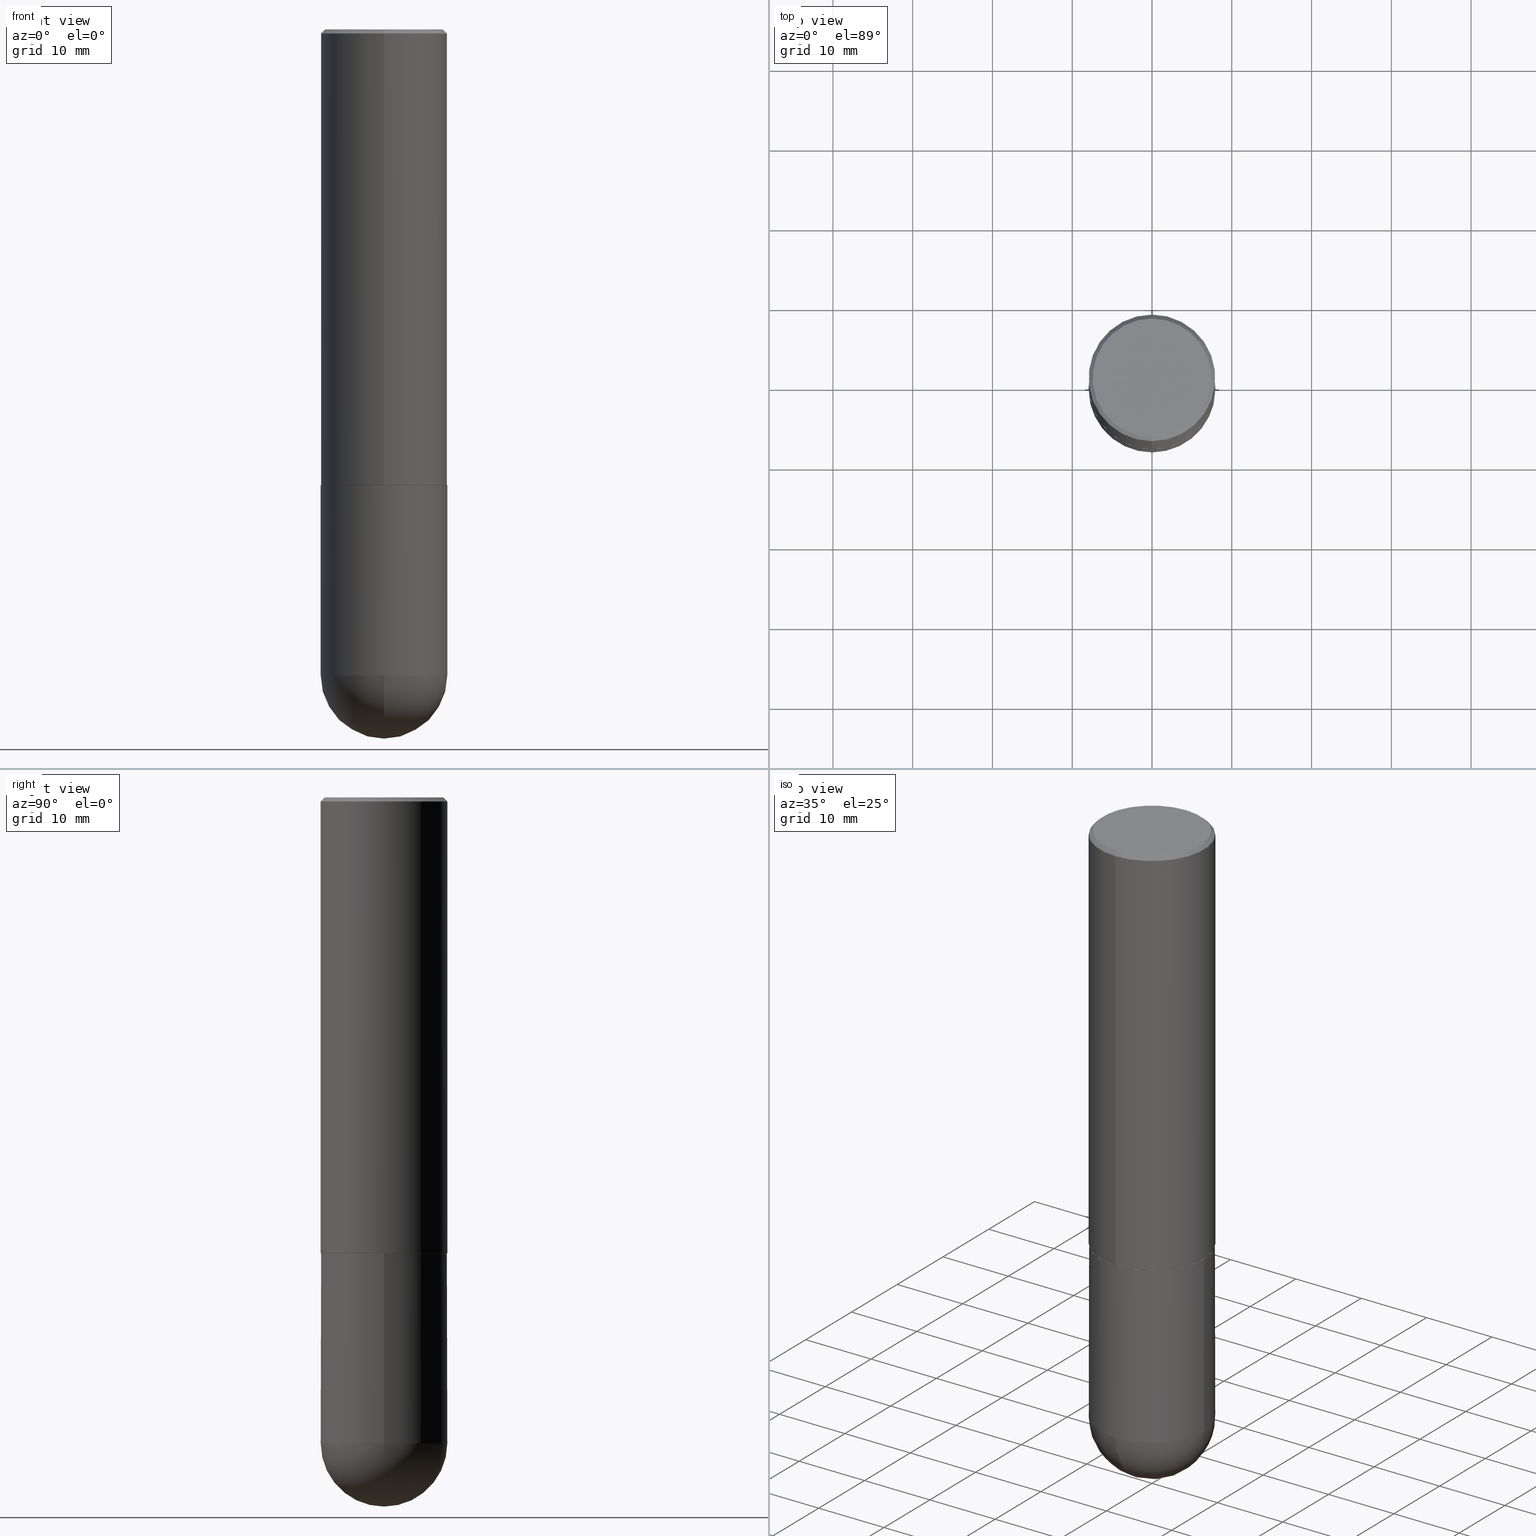
[diagram: canonical four-view strip — front | top / right | iso, engineering-drawing reading convention]
A machine part, canonical four-view strip (front | top / right | iso — engineering-drawing reading convention). The complete STEP part file that produces these views, byte-faithful:
ISO-10303-21;
HEADER;
FILE_DESCRIPTION (( 'STEP AP203' ),
    '1' );
FILE_NAME ('30938.STEP',
    '2024-02-21T16:46:26',
    ( '' ),
    ( '' ),
    'SwSTEP 2.0',
    'SolidWorks 2023',
    '' );
FILE_SCHEMA (( 'CONFIG_CONTROL_DESIGN' ));
ENDSEC;

DATA;
#1 = AXIS2_PLACEMENT_3D ( 'NONE', #22, #201, #266 ) ;
#2 = CARTESIAN_POINT ( 'NONE',  ( 5.500932345782121787E-29, -7.857798464881622238E-15, -2.249999999999999556 ) ) ;
#3 = DIRECTION ( 'NONE',  ( -2.444858820347609683E-29, 3.492354873280721784E-15, 1.000000000000000000 ) ) ;
#4 = ORIENTED_EDGE ( 'NONE', *, *, #177, .T. ) ;
#5 = DIRECTION ( 'NONE',  ( 1.000000000000000000, -6.982962677686265922E-15, 4.883557194083112340E-29 ) ) ;
#6 = EDGE_CURVE ( 'NONE', #59, #361, #402, .T. ) ;
#7 = ORIENTED_EDGE ( 'NONE', *, *, #13, .F. ) ;
#8 = DIRECTION ( 'NONE',  ( -2.444858820347609963E-29, 3.492354873280721389E-15, 1.000000000000000000 ) ) ;
#9 = ORIENTED_EDGE ( 'NONE', *, *, #152, .F. ) ;
#10 = AXIS2_PLACEMENT_3D ( 'NONE', #155, #35, #314 ) ;
#11 = DIRECTION ( 'NONE',  ( -2.444858820347609963E-29, 3.492354873280721389E-15, 1.000000000000000000 ) ) ;
#12 = ORIENTED_EDGE ( 'NONE', *, *, #293, .F. ) ;
#13 = EDGE_CURVE ( 'NONE', #192, #203, #39, .T. ) ;
#14 = DIRECTION ( 'NONE',  ( 0.000000000000000000, 0.000000000000000000, 1.000000000000000000 ) ) ;
#15 = APPROVAL_DATE_TIME ( #399, #34 ) ;
#16 = APPLICATION_PROTOCOL_DEFINITION ( 'international standard', 'config_control_design', 1994, #303 ) ;
#17 = DIRECTION ( 'NONE',  ( -6.982962677686265922E-15, -1.000000000000000000, 3.496765431890253764E-15 ) ) ;
#18 = LOCAL_TIME ( 11, 46, 26.00000000000000000, #169 ) ;
#19 = CARTESIAN_POINT ( 'NONE',  ( 7.794931819715121781E-29, -1.112909676756252622E-14, -3.187500000000000000 ) ) ;
#20 = ORIENTED_EDGE ( 'NONE', *, *, #152, .T. ) ;
#21 = DIRECTION ( 'NONE',  ( 1.000000000000000000, -6.982962677686269077E-15, 0.000000000000000000 ) ) ;
#22 = CARTESIAN_POINT ( 'NONE',  ( 5.500932345782121787E-29, -7.857798464881622238E-15, -2.249999999999999556 ) ) ;
#23 = AXIS2_PLACEMENT_3D ( 'NONE', #89, #91, #223 ) ;
#24 = APPROVAL ( #174, 'UNSPECIFIED' ) ;
#25 = CARTESIAN_POINT ( 'NONE',  ( 2.220446049250313475E-15, 0.3125000000000001665, -1.091360897900225903E-15 ) ) ;
#26 = DIRECTION ( 'NONE',  ( -2.444858820347609963E-29, 3.492354873280721389E-15, 1.000000000000000000 ) ) ;
#27 = CC_DESIGN_DATE_AND_TIME_ASSIGNMENT ( #111, #71, ( #95 ) ) ;
#28 = AXIS2_PLACEMENT_3D ( 'NONE', #2, #273, #88 ) ;
#29 = ORGANIZATION ( 'UNSPECIFIED', 'UNSPECIFIED', '' ) ;
#30 = FACE_OUTER_BOUND ( 'NONE', #31, .T. ) ;
#31 = EDGE_LOOP ( 'NONE', ( #45, #194 ) ) ;
#32 = DIRECTION ( 'NONE',  ( -2.445468806185136877E-29, 3.491481338843145188E-15, 1.000000000000000000 ) ) ;
#33 = AXIS2_PLACEMENT_3D ( 'NONE', #227, #298, #305 ) ;
#34 = APPROVAL ( #260, 'UNSPECIFIED' ) ;
#35 = DIRECTION ( 'NONE',  ( -2.445468806185136597E-29, 3.491481338843145583E-15, 1.000000000000000000 ) ) ;
#36 = FACE_OUTER_BOUND ( 'NONE', #125, .T. ) ;
#37 = ORIENTED_EDGE ( 'NONE', *, *, #237, .T. ) ;
#38 = ADVANCED_FACE ( 'NONE', ( #371 ), #145, .T. ) ;
#39 = CIRCLE ( 'NONE', #175, 0.3125000000000002776 ) ;
#40 = APPROVAL_ROLE ( '' ) ;
#41 = DIRECTION ( 'NONE',  ( -7.105427357601000281E-15, -1.000000000000000000, 0.000000000000000000 ) ) ;
#42 = ORIENTED_EDGE ( 'NONE', *, *, #13, .T. ) ;
#43 = PERSON_AND_ORGANIZATION ( #164, #29 ) ;
#44 = DIRECTION ( 'NONE',  ( -1.000000000000000000, 6.982962677686265922E-15, -4.883557194083112901E-29 ) ) ;
#45 = ORIENTED_EDGE ( 'NONE', *, *, #113, .T. ) ;
#46 = EDGE_CURVE ( 'NONE', #248, #361, #50, .T. ) ;
#47 = AXIS2_PLACEMENT_3D ( 'NONE', #337, #353, #386 ) ;
#48 = EDGE_LOOP ( 'NONE', ( #352, #4, #224, #7 ) ) ;
#49 = DATE_TIME_ROLE ( 'classification_date' ) ;
#50 = LINE ( 'NONE', #301, #86 ) ;
#51 = CARTESIAN_POINT ( 'NONE',  ( 5.502304813916556222E-29, -7.855833012397076871E-15, -2.249999999999999556 ) ) ;
#52 = EDGE_CURVE ( 'NONE', #197, #406, #198, .T. ) ;
#53 = AXIS2_PLACEMENT_3D ( 'NONE', #51, #121, #156 ) ;
#54 = CC_DESIGN_SECURITY_CLASSIFICATION ( #176, ( #304 ) ) ;
#55 = DIRECTION ( 'NONE',  ( -6.982962677686265133E-15, -1.000000000000000000, 3.496765431890256920E-15 ) ) ;
#56 = EDGE_CURVE ( 'NONE', #250, #326, #118, .T. ) ;
#57 = CARTESIAN_POINT ( 'NONE',  ( 2.182175836777013173E-15, 0.3124999999999921729, -2.250000000000000888 ) ) ;
#58 = CARTESIAN_POINT ( 'NONE',  ( -2.182175836776959136E-15, -0.3125000000000001665, 1.091360897900225903E-15 ) ) ;
#59 = VERTEX_POINT ( 'NONE', #281 ) ;
#60 = LINE ( 'NONE', #25, #149 ) ;
#61 = LINE ( 'NONE', #131, #70 ) ;
#62 = CARTESIAN_POINT ( 'NONE',  ( 7.463812041801236655E-29, -1.160327913570257494E-14, -3.187500000000000000 ) ) ;
#63 = ORIENTED_EDGE ( 'NONE', *, *, #46, .F. ) ;
#64 = CARTESIAN_POINT ( 'NONE',  ( 0.000000000000000000, 0.000000000000000000, 0.000000000000000000 ) ) ;
#65 = ORIENTED_EDGE ( 'NONE', *, *, #405, .T. ) ;
#66 = MANIFOLD_SOLID_BREP ( 'Body-Move/Copy2[1]', #339 ) ;
#67 = DIRECTION ( 'NONE',  ( 5.024295867789263036E-15, 0.7071067811867189912, 0.7071067811863760433 ) ) ;
#68 = ORIENTED_EDGE ( 'NONE', *, *, #293, .T. ) ;
#69 = ORIENTED_EDGE ( 'NONE', *, *, #237, .F. ) ;
#70 = VECTOR ( 'NONE', #32, 39.37007874015748143 ) ;
#71 = DATE_TIME_ROLE ( 'creation_date' ) ;
#72 = LOCAL_TIME ( 11, 46, 26.00000000000000000, #108 ) ;
#73 = ORIENTED_EDGE ( 'NONE', *, *, #75, .F. ) ;
#74 = DATE_AND_TIME ( #327, #72 ) ;
#75 = EDGE_CURVE ( 'NONE', #203, #361, #123, .T. ) ;
#76 = APPROVAL_DATE_TIME ( #264, #24 ) ;
#77 = CARTESIAN_POINT ( 'NONE',  ( 5.498487486961774276E-29, -7.854306110008341744E-15, -2.248999999999999666 ) ) ;
#78 = ORIENTED_EDGE ( 'NONE', *, *, #329, .F. ) ;
#79 = PERSON_AND_ORGANIZATION_ROLE ( 'design_owner' ) ;
#80 = CIRCLE ( 'NONE', #407, 0.2924999999999997602 ) ;
#81 = CARTESIAN_POINT ( 'NONE',  ( 4.889717640695238389E-31, -6.984709746561468318E-17, -0.02000000000000007327 ) ) ;
#82 = DIRECTION ( 'NONE',  ( -6.982962677686265133E-15, -1.000000000000000000, 3.492354873280720995E-15 ) ) ;
#83 = CIRCLE ( 'NONE', #146, 0.3125000000000000000 ) ;
#84 = CC_DESIGN_PERSON_AND_ORGANIZATION_ASSIGNMENT ( #291, #79, ( #251 ) ) ;
#85 = CARTESIAN_POINT ( 'NONE',  ( 8.241383017002520278E-29, -1.267523194785438148E-14, -3.500000000000000444 ) ) ;
#86 = VECTOR ( 'NONE', #332, 39.37007874015748854 ) ;
#87 = CIRCLE ( 'NONE', #349, 0.3114999999999999991 ) ;
#88 = DIRECTION ( 'NONE',  ( -6.982962677686265922E-15, -1.000000000000000000, 3.507991003100177457E-15 ) ) ;
#89 = CARTESIAN_POINT ( 'NONE',  ( -3.137019953351439440E-45, 4.481071393769925691E-31, 1.283108835260032635E-16 ) ) ;
#90 = ORIENTED_EDGE ( 'NONE', *, *, #75, .T. ) ;
#91 = DIRECTION ( 'NONE',  ( -2.444858820347609963E-29, 3.492354873280721389E-15, 1.000000000000000000 ) ) ;
#92 = ORIENTED_EDGE ( 'NONE', *, *, #221, .F. ) ;
#93 = CARTESIAN_POINT ( 'NONE',  ( 2.182175836776958741E-15, 0.3124999999999999445, -0.02000000000000116615 ) ) ;
#94 = CONICAL_SURFACE ( 'NONE', #28, 0.3114999999999999991, 0.7853981633976873100 ) ;
#95 = PRODUCT_DEFINITION ( 'UNKNOWN', '', #304, #241 ) ;
#96 = LINE ( 'NONE', #193, #404 ) ;
#97 = ORIENTED_EDGE ( 'NONE', *, *, #147, .F. ) ;
#98 = DIRECTION ( 'NONE',  ( 6.982962677686265922E-15, 1.000000000000000000, -3.496765431890253764E-15 ) ) ;
#99 = ORIENTED_EDGE ( 'NONE', *, *, #106, .F. ) ;
#100 = COORDINATED_UNIVERSAL_TIME_OFFSET ( 5, 0, .BEHIND. ) ;
#101 = CARTESIAN_POINT ( 'NONE',  ( 7.463812041801236655E-29, -1.160327913570257494E-14, -3.187500000000000000 ) ) ;
#102 = ORIENTED_EDGE ( 'NONE', *, *, #46, .T. ) ;
#103 = CIRCLE ( 'NONE', #238, 0.3125000000000000000 ) ;
#104 = DATE_AND_TIME ( #364, #18 ) ;
#105 = DIRECTION ( 'NONE',  ( 6.982962677686265922E-15, 1.000000000000000000, -3.492354873280721784E-15 ) ) ;
#106 = EDGE_CURVE ( 'NONE', #139, #220, #87, .T. ) ;
#107 = CARTESIAN_POINT ( 'NONE',  ( -0.3125000000000000000, -7.272018840729490833E-15, -3.187500000000000000 ) ) ;
#108 = COORDINATED_UNIVERSAL_TIME_OFFSET ( 5, 0, .BEHIND. ) ;
#109 = DIRECTION ( 'NONE',  ( -2.444858820347609963E-29, 3.492354873280721389E-15, 1.000000000000000000 ) ) ;
#110 = ORIENTED_EDGE ( 'NONE', *, *, #6, .F. ) ;
#111 = DATE_AND_TIME ( #392, #151 ) ;
#112 = CARTESIAN_POINT ( 'NONE',  ( 0.000000000000000000, 0.000000000000000000, 0.000000000000000000 ) ) ;
#113 = EDGE_CURVE ( 'NONE', #406, #197, #103, .T. ) ;
#114 = PERSON_AND_ORGANIZATION ( #164, #29 ) ;
#115 = DIRECTION ( 'NONE',  ( -2.445468806185136877E-29, 3.491481338843145188E-15, 1.000000000000000000 ) ) ;
#116 = AXIS2_PLACEMENT_3D ( 'NONE', #112, #365, #82 ) ;
#117 = DIRECTION ( 'NONE',  ( -2.444858820347609963E-29, 3.492354873280721389E-15, 1.000000000000000000 ) ) ;
#118 = CIRCLE ( 'NONE', #370, 0.3125000000000000000 ) ;
#119 = EDGE_CURVE ( 'NONE', #267, #326, #394, .T. ) ;
#120 = DIRECTION ( 'NONE',  ( 1.000000000000000000, -6.982962677686266711E-15, 4.876176775795936353E-29 ) ) ;
#121 = DIRECTION ( 'NONE',  ( -2.445468806185136597E-29, 3.491481338843145583E-15, 1.000000000000000000 ) ) ;
#122 = CARTESIAN_POINT ( 'NONE',  ( 0.3125000000000000000, -1.167464072675676384E-14, -3.187500000000000000 ) ) ;
#123 = LINE ( 'NONE', #58, #215 ) ;
#124 = CYLINDRICAL_SURFACE ( 'NONE', #126, 0.3125000000000000000 ) ;
#125 = EDGE_LOOP ( 'NONE', ( #216, #262, #383, #92 ) ) ;
#126 = AXIS2_PLACEMENT_3D ( 'NONE', #380, #246, #120 ) ;
#127 = PLANE ( 'NONE',  #142 ) ;
#128 =( NAMED_UNIT ( * ) PLANE_ANGLE_UNIT ( ) SI_UNIT ( $, .RADIAN. ) );
#129 = CARTESIAN_POINT ( 'NONE',  ( 5.502304813916556222E-29, -7.855833012397076871E-15, -2.249999999999999556 ) ) ;
#130 = VERTEX_POINT ( 'NONE', #191 ) ;
#131 = CARTESIAN_POINT ( 'NONE',  ( -0.3125000000000000000, 2.220446049250313081E-15, -1.537167215704658232E-29 ) ) ;
#132 = DIRECTION ( 'NONE',  ( 6.982962677686265922E-15, 1.000000000000000000, 0.000000000000000000 ) ) ;
#133 = ADVANCED_FACE ( 'NONE', ( #315 ), #195, .T. ) ;
#134 =( LENGTH_UNIT ( ) NAMED_UNIT ( * ) SI_UNIT ( $, .METRE. ) );
#135 = ORIENTED_EDGE ( 'NONE', *, *, #56, .F. ) ;
#136 = CONICAL_SURFACE ( 'NONE', #312, 0.3125000000000000000, 0.7853981633974490562 ) ;
#137 = DIRECTION ( 'NONE',  ( -6.982962677686265133E-15, -1.000000000000000000, 3.496765431890256920E-15 ) ) ;
#138 = EDGE_LOOP ( 'NONE', ( #348, #342, #97, #334 ) ) ;
#139 = VERTEX_POINT ( 'NONE', #411 ) ;
#140 = PERSON_AND_ORGANIZATION_ROLE ( 'creator' ) ;
#141 = DIRECTION ( 'NONE',  ( -6.982962677686266711E-15, -1.000000000000000000, 3.492354873280721784E-15 ) ) ;
#142 = AXIS2_PLACEMENT_3D ( 'NONE', #57, #372, #276 ) ;
#143 = CALENDAR_DATE ( 2024, 21, 2 ) ;
#144 = ORIENTED_EDGE ( 'NONE', *, *, #182, .F. ) ;
#145 = CONICAL_SURFACE ( 'NONE', #375, 0.3114999999999999991, 0.7853981633976873100 ) ;
#146 = AXIS2_PLACEMENT_3D ( 'NONE', #360, #165, #137 ) ;
#147 = EDGE_CURVE ( 'NONE', #203, #192, #269, .T. ) ;
#148 = CARTESIAN_POINT ( 'NONE',  ( 0.000000000000000000, 0.000000000000000000, 0.000000000000000000 ) ) ;
#149 = VECTOR ( 'NONE', #183, 39.37007874015748143 ) ;
#150 = DIRECTION ( 'NONE',  ( -6.982962677686265922E-15, -1.000000000000000000, 3.507991003100177457E-15 ) ) ;
#151 = LOCAL_TIME ( 11, 46, 26.00000000000000000, #100 ) ;
#152 = EDGE_CURVE ( 'NONE', #248, #130, #80, .T. ) ;
#153 = ORIENTED_EDGE ( 'NONE', *, *, #384, .T. ) ;
#154 =( CONVERSION_BASED_UNIT ( 'INCH', #226 ) LENGTH_UNIT ( ) NAMED_UNIT ( #271 ) );
#155 = CARTESIAN_POINT ( 'NONE',  ( 7.794931819715121781E-29, -1.112909676756252622E-14, -3.187500000000000000 ) ) ;
#156 = DIRECTION ( 'NONE',  ( 1.000000000000000000, -6.982962677686269077E-15, 0.000000000000000000 ) ) ;
#157 = CARTESIAN_POINT ( 'NONE',  ( 0.3125000000000000000, -1.003800884917403522E-14, -2.249999999999999556 ) ) ;
#158 = DIRECTION ( 'NONE',  ( 2.444858820347609403E-29, -3.492354873280721784E-15, -1.000000000000000000 ) ) ;
#159 = CC_DESIGN_DATE_AND_TIME_ASSIGNMENT ( #74, #49, ( #176 ) ) ;
#160 = DIRECTION ( 'NONE',  ( -2.444858820347609963E-29, 3.492354873280721389E-15, 1.000000000000000000 ) ) ;
#161 = ORIENTED_EDGE ( 'NONE', *, *, #113, .F. ) ;
#162 = AXIS2_PLACEMENT_3D ( 'NONE', #396, #109, #206 ) ;
#163 = DIRECTION ( 'NONE',  ( 1.000000000000000000, 0.000000000000000000, 0.000000000000000000 ) ) ;
#164 = PERSON ( 'UNSPECIFIED', 'UNSPECIFIED', 'UNSPECIFIED', ('UNSPECIFIED'), ('UNSPECIFIED'), ('UNSPECIFIED') ) ;
#165 = DIRECTION ( 'NONE',  ( -2.444858820347609963E-29, 3.492354873280721389E-15, 1.000000000000000000 ) ) ;
#166 = APPROVAL ( #205, 'UNSPECIFIED' ) ;
#167 = APPROVAL_DATE_TIME ( #104, #166 ) ;
#168 = DIRECTION ( 'NONE',  ( 6.982962677686265922E-15, 1.000000000000000000, -3.496765431890253764E-15 ) ) ;
#169 = COORDINATED_UNIVERSAL_TIME_OFFSET ( 5, 0, .BEHIND. ) ;
#170 = CARTESIAN_POINT ( 'NONE',  ( 7.463812041801236655E-29, -1.160327913570257494E-14, -3.187500000000000000 ) ) ;
#171 = AXIS2_PLACEMENT_3D ( 'NONE', #170, #44, #168 ) ;
#172 = APPROVAL_PERSON_ORGANIZATION ( #43, #34, #289 ) ;
#173 = APPROVAL_ROLE ( '' ) ;
#174 = APPROVAL_STATUS ( 'not_yet_approved' ) ;
#175 = AXIS2_PLACEMENT_3D ( 'NONE', #338, #117, #179 ) ;
#176 = SECURITY_CLASSIFICATION ( '', '', #230 ) ;
#177 = EDGE_CURVE ( 'NONE', #220, #139, #318, .T. ) ;
#178 = CARTESIAN_POINT ( 'NONE',  ( 2.216893335571567797E-15, 0.3114999999999921720, -2.250000000000000444 ) ) ;
#179 = DIRECTION ( 'NONE',  ( -6.982962677686265922E-15, -1.000000000000000000, 3.496765431890253764E-15 ) ) ;
#180 = CIRCLE ( 'NONE', #10, 0.3125000000000000000 ) ;
#181 = CARTESIAN_POINT ( 'NONE',  ( 7.794931819715121781E-29, -1.112909676756252622E-14, -3.187500000000000000 ) ) ;
#182 = EDGE_CURVE ( 'NONE', #267, #362, #333, .T. ) ;
#183 = DIRECTION ( 'NONE',  ( -2.444858820347609683E-29, 3.492354873280721784E-15, 1.000000000000000000 ) ) ;
#184 = CARTESIAN_POINT ( 'NONE',  ( 2.213340621892766504E-15, 0.3114999999999921720, -2.250000000000000444 ) ) ;
#185 = EDGE_LOOP ( 'NONE', ( #9, #102, #397, #78 ) ) ;
#186 = DIRECTION ( 'NONE',  ( 2.444858820347609963E-29, -3.492354873280721389E-15, -1.000000000000000000 ) ) ;
#187 = DIRECTION ( 'NONE',  ( -2.445468806185136597E-29, 3.491481338843145583E-15, 1.000000000000000000 ) ) ;
#188 = ORIENTED_EDGE ( 'NONE', *, *, #6, .T. ) ;
#189 = APPROVAL_PERSON_ORGANIZATION ( #233, #166, #173 ) ;
#190 = ADVANCED_FACE ( 'NONE', ( #261 ), #287, .F. ) ;
#191 = CARTESIAN_POINT ( 'NONE',  ( 2.112346210000094654E-15, 0.2924999999999997602, -8.932029169086070190E-16 ) ) ;
#192 = VERTEX_POINT ( 'NONE', #231 ) ;
#193 = CARTESIAN_POINT ( 'NONE',  ( -2.175192874099216718E-15, -0.3115000000000078817, -2.249999999999998224 ) ) ;
#194 = ORIENTED_EDGE ( 'NONE', *, *, #52, .T. ) ;
#195 = SPHERICAL_SURFACE ( 'NONE', #171, 0.3125000000000002776 ) ;
#196 = EDGE_CURVE ( 'NONE', #361, #59, #83, .T. ) ;
#197 = VERTEX_POINT ( 'NONE', #257 ) ;
#198 = CIRCLE ( 'NONE', #53, 0.3125000000000000000 ) ;
#199 = CIRCLE ( 'NONE', #23, 0.2924999999999997602 ) ;
#200 = MECHANICAL_CONTEXT ( 'NONE', #303, 'mechanical' ) ;
#201 = DIRECTION ( 'NONE',  ( -2.444858820347609403E-29, 3.492354873280721784E-15, 1.000000000000000000 ) ) ;
#202 = COORDINATED_UNIVERSAL_TIME_OFFSET ( 5, 0, .BEHIND. ) ;
#203 = VERTEX_POINT ( 'NONE', #388 ) ;
#204 = EDGE_CURVE ( 'NONE', #362, #250, #308, .T. ) ;
#205 = APPROVAL_STATUS ( 'not_yet_approved' ) ;
#206 = DIRECTION ( 'NONE',  ( -6.982962677686265922E-15, -1.000000000000000000, 3.507991003100177457E-15 ) ) ;
#207 = FACE_OUTER_BOUND ( 'NONE', #379, .T. ) ;
#208 = MANIFOLD_SOLID_BREP ( 'Body-Move/Copy2[2]', #253 ) ;
#209 = AXIS2_PLACEMENT_3D ( 'NONE', #19, #234, #21 ) ;
#210 = PERSON_AND_ORGANIZATION_ROLE ( 'design_supplier' ) ;
#211 = LINE ( 'NONE', #328, #263 ) ;
#212 = AXIS2_PLACEMENT_3D ( 'NONE', #101, #292, #41 ) ;
#213 =( GEOMETRIC_REPRESENTATION_CONTEXT ( 3 ) GLOBAL_UNCERTAINTY_ASSIGNED_CONTEXT ( ( #324 ) ) GLOBAL_UNIT_ASSIGNED_CONTEXT ( ( #154, #128, #218 ) ) REPRESENTATION_CONTEXT ( 'NONE', 'WORKASPACE' ) );
#214 = AXIS2_PLACEMENT_3D ( 'NONE', #81, #26, #55 ) ;
#215 = VECTOR ( 'NONE', #3, 39.37007874015748143 ) ;
#216 = ORIENTED_EDGE ( 'NONE', *, *, #119, .F. ) ;
#217 = CYLINDRICAL_SURFACE ( 'NONE', #254, 0.3125000000000000000 ) ;
#218 =( NAMED_UNIT ( * ) SI_UNIT ( $, .STERADIAN. ) SOLID_ANGLE_UNIT ( ) );
#219 = DIRECTION ( 'NONE',  ( -2.445468806185136597E-29, 3.491481338843145583E-15, 1.000000000000000000 ) ) ;
#220 = VERTEX_POINT ( 'NONE', #178 ) ;
#221 = EDGE_CURVE ( 'NONE', #326, #319, #277, .T. ) ;
#222 = EDGE_LOOP ( 'NONE', ( #153, #20 ) ) ;
#223 = DIRECTION ( 'NONE',  ( -6.982962677686266711E-15, -1.000000000000000000, 3.492354873280721784E-15 ) ) ;
#224 = ORIENTED_EDGE ( 'NONE', *, *, #373, .T. ) ;
#225 = ADVANCED_FACE ( 'NONE', ( #270 ), #400, .T. ) ;
#226 = LENGTH_MEASURE_WITH_UNIT ( LENGTH_MEASURE( 0.02539999999999999897 ), #134 );
#227 = CARTESIAN_POINT ( 'NONE',  ( 7.794931819715121781E-29, -1.112909676756252622E-14, -3.187500000000000000 ) ) ;
#228 = ORIENTED_EDGE ( 'NONE', *, *, #196, .F. ) ;
#229 = ORIENTED_EDGE ( 'NONE', *, *, #56, .T. ) ;
#230 = SECURITY_CLASSIFICATION_LEVEL ( 'unclassified' ) ;
#231 = CARTESIAN_POINT ( 'NONE',  ( 2.220446049250341874E-15, 0.3124999999999924505, -2.249000000000000998 ) ) ;
#232 = CC_DESIGN_PERSON_AND_ORGANIZATION_ASSIGNMENT ( #297, #359, ( #176 ) ) ;
#233 = PERSON_AND_ORGANIZATION ( #164, #29 ) ;
#234 = DIRECTION ( 'NONE',  ( -2.445468806185136597E-29, 3.491481338843145583E-15, 1.000000000000000000 ) ) ;
#235 = LOCAL_TIME ( 11, 46, 26.00000000000000000, #202 ) ;
#236 = CARTESIAN_POINT ( 'NONE',  ( 5.500932345782121787E-29, -7.857798464881622238E-15, -2.249999999999999556 ) ) ;
#237 = EDGE_CURVE ( 'NONE', #250, #406, #211, .T. ) ;
#238 = AXIS2_PLACEMENT_3D ( 'NONE', #129, #219, #347 ) ;
#239 = FACE_OUTER_BOUND ( 'NONE', #391, .T. ) ;
#240 = CARTESIAN_POINT ( 'NONE',  ( 5.500932345782121787E-29, -7.857798464881622238E-15, -2.249999999999999556 ) ) ;
#241 = DESIGN_CONTEXT ( 'detailed design', #306, 'design' ) ;
#242 = DIRECTION ( 'NONE',  ( 4.937700262164550409E-15, 0.7071067811865455743, -0.7071067811865493491 ) ) ;
#243 = AXIS2_PLACEMENT_3D ( 'NONE', #252, #280, #98 ) ;
#244 = DIRECTION ( 'NONE',  ( 1.000000000000000000, -6.982962677686269077E-15, 0.000000000000000000 ) ) ;
#245 = AXIS2_PLACEMENT_3D ( 'NONE', #322, #14, #163 ) ;
#246 = DIRECTION ( 'NONE',  ( -2.445468806185136597E-29, 3.491481338843145583E-15, 1.000000000000000000 ) ) ;
#247 = ADVANCED_FACE ( 'NONE', ( #30 ), #127, .F. ) ;
#248 = VERTEX_POINT ( 'NONE', #249 ) ;
#249 = CARTESIAN_POINT ( 'NONE',  ( -2.075300644325887099E-15, -0.2924999999999997602, 1.149824683960613595E-15 ) ) ;
#250 = VERTEX_POINT ( 'NONE', #122 ) ;
#251 = PRODUCT ( '30938', '30938', '', ( #200 ) ) ;
#252 = CARTESIAN_POINT ( 'NONE',  ( 7.463812041801236655E-29, -1.160327913570257494E-14, -3.187500000000000000 ) ) ;
#253 = CLOSED_SHELL ( 'NONE', ( #38, #369, #321, #302, #225, #265, #309, #190 ) ) ;
#254 = AXIS2_PLACEMENT_3D ( 'NONE', #148, #343, #346 ) ;
#255 = ADVANCED_FACE ( 'NONE', ( #382 ), #124, .T. ) ;
#256 = DIRECTION ( 'NONE',  ( -6.982962677686265133E-15, -1.000000000000000000, 3.492354873280720995E-15 ) ) ;
#257 = CARTESIAN_POINT ( 'NONE',  ( -0.3125000000000000000, -7.272018840729487678E-15, -2.249999999999999556 ) ) ;
#258 = ORIENTED_EDGE ( 'NONE', *, *, #329, .T. ) ;
#259 = PERSON_AND_ORGANIZATION ( #164, #29 ) ;
#260 = APPROVAL_STATUS ( 'not_yet_approved' ) ;
#261 = FACE_OUTER_BOUND ( 'NONE', #222, .T. ) ;
#262 = ORIENTED_EDGE ( 'NONE', *, *, #182, .T. ) ;
#263 = VECTOR ( 'NONE', #115, 39.37007874015748143 ) ;
#264 = DATE_AND_TIME ( #143, #235 ) ;
#265 = ADVANCED_FACE ( 'NONE', ( #377 ), #94, .T. ) ;
#266 = DIRECTION ( 'NONE',  ( -6.982962677686265922E-15, -1.000000000000000000, 3.492354873280721784E-15 ) ) ;
#267 = VERTEX_POINT ( 'NONE', #85 ) ;
#268 = DIRECTION ( 'NONE',  ( -2.444858820347609963E-29, 3.492354873280721389E-15, 1.000000000000000000 ) ) ;
#269 = CIRCLE ( 'NONE', #340, 0.3125000000000002776 ) ;
#270 = FACE_OUTER_BOUND ( 'NONE', #316, .T. ) ;
#271 = DIMENSIONAL_EXPONENTS ( 1.000000000000000000, 0.000000000000000000, 0.000000000000000000, 0.000000000000000000, 0.000000000000000000, 0.000000000000000000, 0.000000000000000000 ) ;
#272 = AXIS2_PLACEMENT_3D ( 'NONE', #393, #158, #105 ) ;
#273 = DIRECTION ( 'NONE',  ( -2.444858820347609963E-29, 3.492354873280721389E-15, 1.000000000000000000 ) ) ;
#274 = CARTESIAN_POINT ( 'NONE',  ( -2.220446049250237350E-15, -0.3125000000000114908, -3.187499999999998668 ) ) ;
#275 = ORIENTED_EDGE ( 'NONE', *, *, #147, .T. ) ;
#276 = DIRECTION ( 'NONE',  ( -1.000000000000000000, 6.982962677686265922E-15, -4.876176775795935793E-29 ) ) ;
#277 = CIRCLE ( 'NONE', #209, 0.3125000000000000000 ) ;
#278 = CC_DESIGN_APPROVAL ( #34, ( #95 ) ) ;
#279 = ADVANCED_BREP_SHAPE_REPRESENTATION ( '30938', ( #66, #208, #245 ), #213 ) ;
#280 = DIRECTION ( 'NONE',  ( -1.000000000000000000, 6.982962677686265922E-15, -4.883557194083112901E-29 ) ) ;
#281 = CARTESIAN_POINT ( 'NONE',  ( 2.182175836776958741E-15, 0.3124999999999999445, -0.02000000000000116615 ) ) ;
#282 = ORIENTED_EDGE ( 'NONE', *, *, #177, .F. ) ;
#283 = CARTESIAN_POINT ( 'NONE',  ( -3.137019953351439440E-45, 4.481071393769925691E-31, 1.283108835260032635E-16 ) ) ;
#284 = ADVANCED_FACE ( 'NONE', ( #409 ), #217, .T. ) ;
#285 = EDGE_LOOP ( 'NONE', ( #275, #68, #228, #73 ) ) ;
#286 = CARTESIAN_POINT ( 'NONE',  ( 2.182175836777035261E-15, 0.3124999999999887867, -3.187500000000000888 ) ) ;
#287 = PLANE ( 'NONE',  #272 ) ;
#288 = AXIS2_PLACEMENT_3D ( 'NONE', #62, #5, #132 ) ;
#289 = APPROVAL_ROLE ( '' ) ;
#290 = EDGE_LOOP ( 'NONE', ( #412, #65, #161, #69, #229 ) ) ;
#291 = PERSON_AND_ORGANIZATION ( #164, #29 ) ;
#292 = DIRECTION ( 'NONE',  ( -1.000000000000000000, 7.105427357601001070E-15, -4.926315508542082329E-29 ) ) ;
#293 = EDGE_CURVE ( 'NONE', #192, #59, #60, .T. ) ;
#294 = PERSON_AND_ORGANIZATION ( #164, #29 ) ;
#295 = EDGE_LOOP ( 'NONE', ( #144, #354, #135, #323 ) ) ;
#296 = CONICAL_SURFACE ( 'NONE', #47, 0.3125000000000000000, 0.7853981633974490562 ) ;
#297 = PERSON_AND_ORGANIZATION ( #164, #29 ) ;
#298 = DIRECTION ( 'NONE',  ( -2.445468806185136597E-29, 3.491481338843145583E-15, 1.000000000000000000 ) ) ;
#299 = ORIENTED_EDGE ( 'NONE', *, *, #405, .F. ) ;
#300 = SHAPE_DEFINITION_REPRESENTATION ( #313, #279 ) ;
#301 = CARTESIAN_POINT ( 'NONE',  ( -2.143905624303602824E-15, -0.3125000000000000555, -0.01999999999999898040 ) ) ;
#302 = ADVANCED_FACE ( 'NONE', ( #239 ), #136, .T. ) ;
#303 = APPLICATION_CONTEXT ( 'configuration controlled 3d designs of mechanical parts and assemblies' ) ;
#304 = PRODUCT_DEFINITION_FORMATION_WITH_SPECIFIED_SOURCE ( 'ANY', '', #251, .NOT_KNOWN. ) ;
#305 = DIRECTION ( 'NONE',  ( 1.000000000000000000, -6.982962677686269077E-15, 0.000000000000000000 ) ) ;
#306 = APPLICATION_CONTEXT ( 'configuration controlled 3d designs of mechanical parts and assemblies' ) ;
#307 = CC_DESIGN_PERSON_AND_ORGANIZATION_ASSIGNMENT ( #114, #140, ( #304 ) ) ;
#308 = CIRCLE ( 'NONE', #33, 0.3125000000000000000 ) ;
#309 = ADVANCED_FACE ( 'NONE', ( #207 ), #331, .F. ) ;
#310 = CARTESIAN_POINT ( 'NONE',  ( 4.889717640695238389E-31, -6.984709746561468318E-17, -0.02000000000000007327 ) ) ;
#311 = SPHERICAL_SURFACE ( 'NONE', #243, 0.3125000000000002776 ) ;
#312 = AXIS2_PLACEMENT_3D ( 'NONE', #310, #186, #336 ) ;
#313 = PRODUCT_DEFINITION_SHAPE ( 'NONE', 'NONE',  #95 ) ;
#314 = DIRECTION ( 'NONE',  ( 1.000000000000000000, -6.982962677686269077E-15, 0.000000000000000000 ) ) ;
#315 = FACE_OUTER_BOUND ( 'NONE', #295, .T. ) ;
#316 = EDGE_LOOP ( 'NONE', ( #12, #42, #90, #110 ) ) ;
#317 = LINE ( 'NONE', #93, #385 ) ;
#318 = CIRCLE ( 'NONE', #162, 0.3114999999999999991 ) ;
#319 = VERTEX_POINT ( 'NONE', #107 ) ;
#320 = CALENDAR_DATE ( 2024, 21, 2 ) ;
#321 = ADVANCED_FACE ( 'NONE', ( #368 ), #296, .T. ) ;
#322 = CARTESIAN_POINT ( 'NONE',  ( 0.000000000000000000, 0.000000000000000000, 0.000000000000000000 ) ) ;
#323 = ORIENTED_EDGE ( 'NONE', *, *, #204, .F. ) ;
#324 = UNCERTAINTY_MEASURE_WITH_UNIT (LENGTH_MEASURE( 1.000000000000000082E-05 ), #154, 'distance_accuracy_value', 'NONE');
#325 = APPLICATION_PROTOCOL_DEFINITION ( 'international standard', 'config_control_design', 1994, #306 ) ;
#326 = VERTEX_POINT ( 'NONE', #286 ) ;
#327 = CALENDAR_DATE ( 2024, 21, 2 ) ;
#328 = CARTESIAN_POINT ( 'NONE',  ( 0.3125000000000000000, -2.182175836776958347E-15, 1.523805242436230075E-29 ) ) ;
#329 = EDGE_CURVE ( 'NONE', #130, #59, #317, .T. ) ;
#330 = DIRECTION ( 'NONE',  ( -6.982962677686265922E-15, -1.000000000000000000, 3.507991003100177457E-15 ) ) ;
#331 = PLANE ( 'NONE',  #1 ) ;
#332 = DIRECTION ( 'NONE',  ( -4.851104656540967430E-15, -0.7071067811865504593, -0.7071067811865444641 ) ) ;
#333 = CIRCLE ( 'NONE', #212, 0.3125000000000002776 ) ;
#334 = ORIENTED_EDGE ( 'NONE', *, *, #373, .F. ) ;
#335 = CC_DESIGN_PERSON_AND_ORGANIZATION_ASSIGNMENT ( #259, #390, ( #95 ) ) ;
#336 = DIRECTION ( 'NONE',  ( 6.982962677686265133E-15, 1.000000000000000000, -3.496765431890256920E-15 ) ) ;
#337 = CARTESIAN_POINT ( 'NONE',  ( 4.889717640695238389E-31, -6.984709746561468318E-17, -0.02000000000000007327 ) ) ;
#338 = CARTESIAN_POINT ( 'NONE',  ( 5.498487486961774276E-29, -7.854306110008341744E-15, -2.248999999999999666 ) ) ;
#339 = CLOSED_SHELL ( 'NONE', ( #255, #389, #133, #247, #284 ) ) ;
#340 = AXIS2_PLACEMENT_3D ( 'NONE', #77, #160, #17 ) ;
#341 = CC_DESIGN_PERSON_AND_ORGANIZATION_ASSIGNMENT ( #294, #210, ( #304 ) ) ;
#342 = ORIENTED_EDGE ( 'NONE', *, *, #356, .T. ) ;
#343 = DIRECTION ( 'NONE',  ( -2.445468806185136597E-29, 3.491481338843145583E-15, 1.000000000000000000 ) ) ;
#344 = LINE ( 'NONE', #184, #367 ) ;
#345 = ORIENTED_EDGE ( 'NONE', *, *, #384, .F. ) ;
#346 = DIRECTION ( 'NONE',  ( 1.000000000000000000, -6.982962677686266711E-15, 4.876176775795936353E-29 ) ) ;
#347 = DIRECTION ( 'NONE',  ( 1.000000000000000000, -6.982962677686269077E-15, 0.000000000000000000 ) ) ;
#348 = ORIENTED_EDGE ( 'NONE', *, *, #106, .T. ) ;
#349 = AXIS2_PLACEMENT_3D ( 'NONE', #240, #374, #150 ) ;
#350 = CARTESIAN_POINT ( 'NONE',  ( -2.143905624303602824E-15, -0.3125000000000000555, -0.01999999999999898040 ) ) ;
#351 = APPROVAL_PERSON_ORGANIZATION ( #401, #24, #40 ) ;
#352 = ORIENTED_EDGE ( 'NONE', *, *, #356, .F. ) ;
#353 = DIRECTION ( 'NONE',  ( 2.444858820347609963E-29, -3.492354873280721389E-15, -1.000000000000000000 ) ) ;
#354 = ORIENTED_EDGE ( 'NONE', *, *, #119, .T. ) ;
#355 = COORDINATED_UNIVERSAL_TIME_OFFSET ( 5, 0, .BEHIND. ) ;
#356 = EDGE_CURVE ( 'NONE', #220, #192, #344, .T. ) ;
#357 = ORIENTED_EDGE ( 'NONE', *, *, #52, .F. ) ;
#358 = CC_DESIGN_APPROVAL ( #166, ( #304 ) ) ;
#359 = PERSON_AND_ORGANIZATION_ROLE ( 'classification_officer' ) ;
#360 = CARTESIAN_POINT ( 'NONE',  ( 4.889717640695238389E-31, -6.984709746561468318E-17, -0.02000000000000007327 ) ) ;
#361 = VERTEX_POINT ( 'NONE', #350 ) ;
#362 = VERTEX_POINT ( 'NONE', #274 ) ;
#363 = EDGE_CURVE ( 'NONE', #319, #362, #180, .T. ) ;
#364 = CALENDAR_DATE ( 2024, 21, 2 ) ;
#365 = DIRECTION ( 'NONE',  ( -2.444858820347609963E-29, 3.492354873280721389E-15, 1.000000000000000000 ) ) ;
#366 = EDGE_LOOP ( 'NONE', ( #299, #395, #403, #37, #357 ) ) ;
#367 = VECTOR ( 'NONE', #67, 39.37007874015748143 ) ;
#368 = FACE_OUTER_BOUND ( 'NONE', #185, .T. ) ;
#369 = ADVANCED_FACE ( 'NONE', ( #378 ), #381, .T. ) ;
#370 = AXIS2_PLACEMENT_3D ( 'NONE', #181, #187, #244 ) ;
#371 = FACE_OUTER_BOUND ( 'NONE', #138, .T. ) ;
#372 = DIRECTION ( 'NONE',  ( 2.438088387897960049E-29, -3.491481338843145188E-15, -1.000000000000000000 ) ) ;
#373 = EDGE_CURVE ( 'NONE', #139, #203, #96, .T. ) ;
#374 = DIRECTION ( 'NONE',  ( -2.444858820347609963E-29, 3.492354873280721389E-15, 1.000000000000000000 ) ) ;
#375 = AXIS2_PLACEMENT_3D ( 'NONE', #236, #268, #330 ) ;
#376 = AXIS2_PLACEMENT_3D ( 'NONE', #64, #11, #256 ) ;
#377 = FACE_OUTER_BOUND ( 'NONE', #48, .T. ) ;
#378 = FACE_OUTER_BOUND ( 'NONE', #285, .T. ) ;
#379 = EDGE_LOOP ( 'NONE', ( #99, #282 ) ) ;
#380 = CARTESIAN_POINT ( 'NONE',  ( 0.000000000000000000, 0.000000000000000000, 0.000000000000000000 ) ) ;
#381 = CYLINDRICAL_SURFACE ( 'NONE', #376, 0.3125000000000001665 ) ;
#382 = FACE_OUTER_BOUND ( 'NONE', #290, .T. ) ;
#383 = ORIENTED_EDGE ( 'NONE', *, *, #363, .F. ) ;
#384 = EDGE_CURVE ( 'NONE', #130, #248, #199, .T. ) ;
#385 = VECTOR ( 'NONE', #242, 39.37007874015748854 ) ;
#386 = DIRECTION ( 'NONE',  ( 6.982962677686265133E-15, 1.000000000000000000, -3.496765431890256920E-15 ) ) ;
#387 = LOCAL_TIME ( 11, 46, 26.00000000000000000, #355 ) ;
#388 = CARTESIAN_POINT ( 'NONE',  ( -2.182175836776905099E-15, -0.3125000000000081601, -2.248999999999998778 ) ) ;
#389 = ADVANCED_FACE ( 'NONE', ( #36 ), #311, .T. ) ;
#390 = PERSON_AND_ORGANIZATION_ROLE ( 'creator' ) ;
#391 = EDGE_LOOP ( 'NONE', ( #63, #345, #258, #188 ) ) ;
#392 = CALENDAR_DATE ( 2024, 21, 2 ) ;
#393 = CARTESIAN_POINT ( 'NONE',  ( 2.042516583223231356E-15, 0.2924999999999997602, -9.573583586716086631E-16 ) ) ;
#394 = CIRCLE ( 'NONE', #288, 0.3125000000000002776 ) ;
#395 = ORIENTED_EDGE ( 'NONE', *, *, #363, .T. ) ;
#396 = CARTESIAN_POINT ( 'NONE',  ( 5.500932345782121787E-29, -7.857798464881622238E-15, -2.249999999999999556 ) ) ;
#397 = ORIENTED_EDGE ( 'NONE', *, *, #196, .T. ) ;
#398 = PRODUCT_RELATED_PRODUCT_CATEGORY ( 'detail', '', ( #251 ) ) ;
#399 = DATE_AND_TIME ( #320, #387 ) ;
#400 = CYLINDRICAL_SURFACE ( 'NONE', #116, 0.3125000000000001665 ) ;
#401 = PERSON_AND_ORGANIZATION ( #164, #29 ) ;
#402 = CIRCLE ( 'NONE', #214, 0.3125000000000000000 ) ;
#403 = ORIENTED_EDGE ( 'NONE', *, *, #204, .T. ) ;
#404 = VECTOR ( 'NONE', #410, 39.37007874015748143 ) ;
#405 = EDGE_CURVE ( 'NONE', #319, #197, #61, .T. ) ;
#406 = VERTEX_POINT ( 'NONE', #157 ) ;
#407 = AXIS2_PLACEMENT_3D ( 'NONE', #283, #8, #141 ) ;
#408 = CC_DESIGN_APPROVAL ( #24, ( #176 ) ) ;
#409 = FACE_OUTER_BOUND ( 'NONE', #366, .T. ) ;
#410 = DIRECTION ( 'NONE',  ( -4.937700262165728178E-15, -0.7071067811867141062, 0.7071067811863809283 ) ) ;
#411 = CARTESIAN_POINT ( 'NONE',  ( -2.175192874099216718E-15, -0.3115000000000078817, -2.249999999999998224 ) ) ;
#412 = ORIENTED_EDGE ( 'NONE', *, *, #221, .T. ) ;
ENDSEC;
END-ISO-10303-21;
